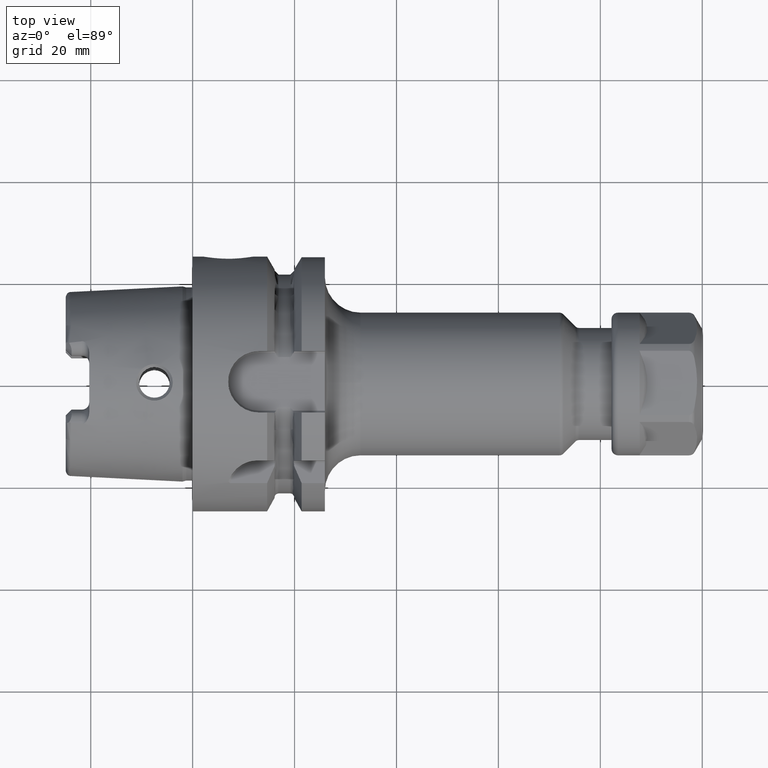
[diagram: clean part render]
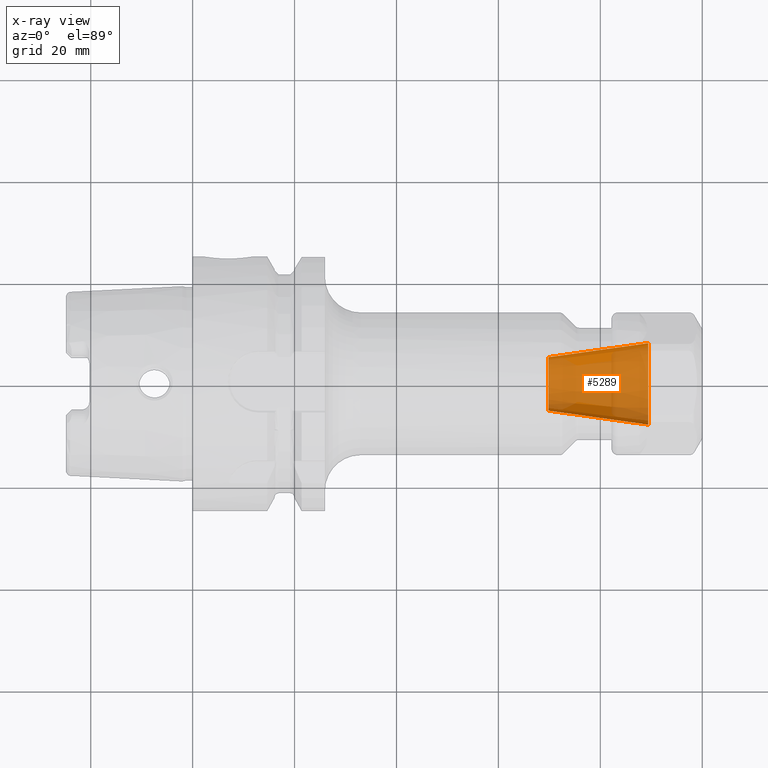
[diagram: x-ray — body ghosted, one internal face saturated and labeled with its STEP entity id]
A machine part, top view, then the same camera in x-ray: the body is ghosted and one INTERNAL B-rep face — a face not visible from any outside direction — is saturated and labeled: STEP entity #5289.
In plain terms, the highlighted conical surface has half-angle 8 deg.
Its self-contained STEP definition (entity closure, byte-faithful):
#1813=CARTESIAN_POINT('',(8.94E1,0.E0,0.E0));
#1814=DIRECTION('',(1.E0,0.E0,0.E0));
#1815=DIRECTION('',(0.E0,-1.E0,0.E0));
#1816=AXIS2_PLACEMENT_3D('',#1813,#1814,#1815);
#1818=DIRECTION('',(-9.902680687416E-1,1.391731009601E-1,0.E0));
#1819=VECTOR('',#1818,1.975956546940E1);
#1820=CARTESIAN_POINT('',(8.94E1,-8.E0,0.E0));
#1821=LINE('',#1820,#1819);
#1822=DIRECTION('',(-9.902680687416E-1,-1.391731009601E-1,0.E0));
#1823=VECTOR('',#1822,1.975956546940E1);
#1824=CARTESIAN_POINT('',(8.94E1,8.E0,0.E0));
#1825=LINE('',#1824,#1823);
#1830=CARTESIAN_POINT('',(6.983273326344E1,0.E0,0.E0));
#1831=DIRECTION('',(-1.E0,0.E0,0.E0));
#1832=DIRECTION('',(0.E0,1.E0,0.E0));
#1833=AXIS2_PLACEMENT_3D('',#1830,#1831,#1832);
#3341=CARTESIAN_POINT('',(6.983273326344E1,5.25E0,0.E0));
#3343=VERTEX_POINT('',#3341);
#3345=CARTESIAN_POINT('',(6.983273326344E1,-5.25E0,0.E0));
#3347=VERTEX_POINT('',#3345);
#3349=CARTESIAN_POINT('',(8.94E1,8.E0,0.E0));
#3350=CARTESIAN_POINT('',(8.94E1,-8.E0,0.E0));
#3351=VERTEX_POINT('',#3349);
#3352=VERTEX_POINT('',#3350);
#5277=CARTESIAN_POINT('',(7.961636663172E1,0.E0,0.E0));
#5278=DIRECTION('',(1.E0,0.E0,0.E0));
#5279=DIRECTION('',(0.E0,-1.E0,0.E0));
#5280=AXIS2_PLACEMENT_3D('',#5277,#5278,#5279);
#5281=CONICAL_SURFACE('',#5280,6.625E0,8.E0);
#5282=ORIENTED_EDGE('',*,*,#5257,.F.);
#5283=ORIENTED_EDGE('',*,*,#5272,.T.);
#5285=ORIENTED_EDGE('',*,*,#5284,.F.);
#5286=ORIENTED_EDGE('',*,*,#5268,.F.);
#5287=EDGE_LOOP('',(#5282,#5283,#5285,#5286));
#5288=FACE_OUTER_BOUND('',#5287,.F.);
#5289=ADVANCED_FACE('',(#5288),#5281,.F.);
#1817=CIRCLE('',#1816,8.E0);
#1834=CIRCLE('',#1833,5.25E0);
#5257=EDGE_CURVE('',#3352,#3351,#1817,.T.);
#5268=EDGE_CURVE('',#3351,#3343,#1825,.T.);
#5272=EDGE_CURVE('',#3352,#3347,#1821,.T.);
#5284=EDGE_CURVE('',#3343,#3347,#1834,.T.);